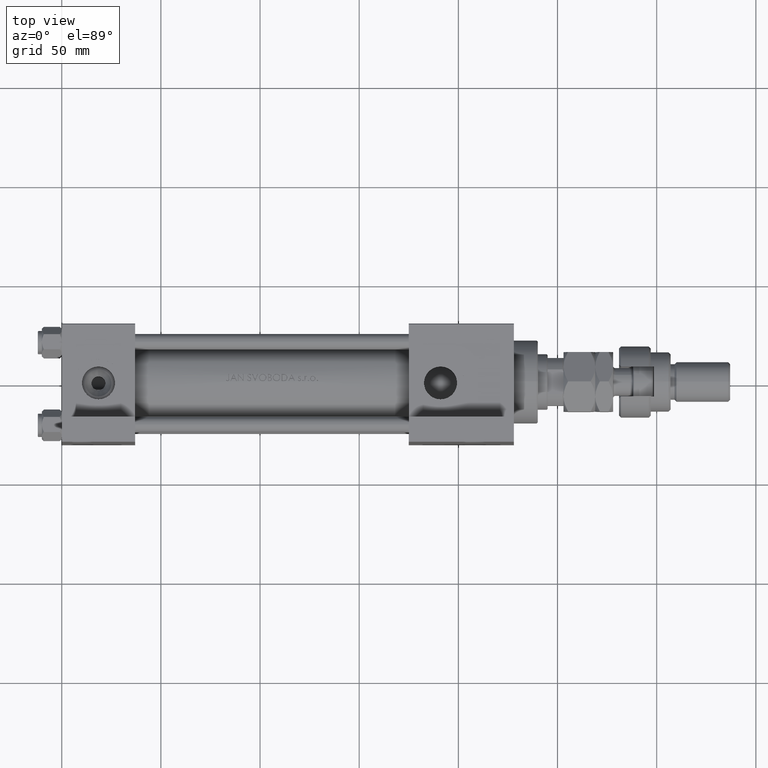
[diagram: clean part render]
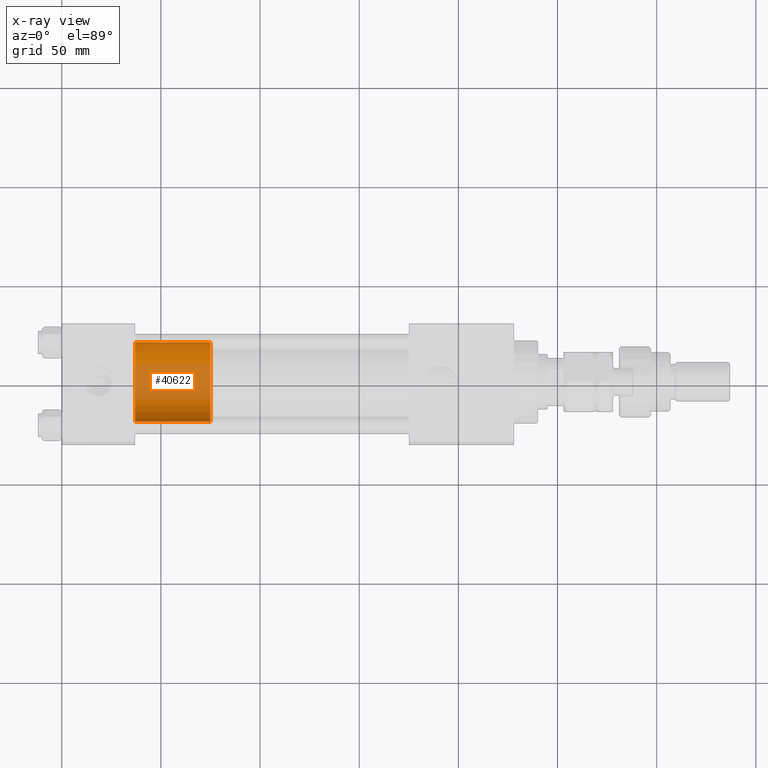
[diagram: x-ray — body ghosted, one internal face saturated and labeled with its STEP entity id]
A machine part, top view, then the same camera in x-ray: the body is ghosted and one INTERNAL B-rep face — a face not visible from any outside direction — is saturated and labeled: STEP entity #40622.
In plain terms, the highlighted cylindrical surface (partial cylindrical patch) has radius 20 mm, axis along (-1, 0, 0).
Its self-contained STEP definition (entity closure, byte-faithful):
#971 = EDGE_CURVE ( 'NONE', #23239, #45034, #5481, .T. ) ;
#1563 = DIRECTION ( 'NONE',  ( 0.000000000000000000, 0.000000000000000000, 1.000000000000000000 ) ) ;
#2635 = CARTESIAN_POINT ( 'NONE',  ( 0.000000000000000000, 0.000000000000000000, 38.00000000000000000 ) ) ;
#5481 = CIRCLE ( 'NONE', #34110, 20.00000000000000000 ) ;
#9569 = DIRECTION ( 'NONE',  ( -0.000000000000000000, -0.000000000000000000, -1.000000000000000000 ) ) ;
#9692 = CARTESIAN_POINT ( 'NONE',  ( 0.000000000000000000, 0.000000000000000000, 0.000000000000000000 ) ) ;
#10379 = VERTEX_POINT ( 'NONE', #26493 ) ;
#11996 = EDGE_CURVE ( 'NONE', #42879, #10379, #14216, .T. ) ;
#12259 = EDGE_LOOP ( 'NONE', ( #39052, #13752, #13368, #42989 ) ) ;
#13361 = AXIS2_PLACEMENT_3D ( 'NONE', #9692, #41887, #21830 ) ;
#13368 = ORIENTED_EDGE ( 'NONE', *, *, #11996, .T. ) ;
#13676 = CARTESIAN_POINT ( 'NONE',  ( 20.00000000000000000, 2.449293598294706513E-15, 38.00000000000000000 ) ) ;
#13752 = ORIENTED_EDGE ( 'NONE', *, *, #29108, .T. ) ;
#14216 = CIRCLE ( 'NONE', #13361, 20.00000000000000000 ) ;
#14990 = DIRECTION ( 'NONE',  ( 1.000000000000000000, 0.000000000000000000, 0.000000000000000000 ) ) ;
#16099 = VECTOR ( 'NONE', #40850, 1000.000000000000000 ) ;
#16336 = CARTESIAN_POINT ( 'NONE',  ( 20.00000000000000000, 2.449293598294706513E-15, 38.00000000000000000 ) ) ;
#19370 = DIRECTION ( 'NONE',  ( -0.000000000000000000, -0.000000000000000000, -1.000000000000000000 ) ) ;
#20806 = LINE ( 'NONE', #13676, #16099 ) ;
#21830 = DIRECTION ( 'NONE',  ( 1.000000000000000000, 0.000000000000000000, 0.000000000000000000 ) ) ;
#22641 = CARTESIAN_POINT ( 'NONE',  ( -20.00000000000000000, 0.000000000000000000, 38.00000000000000000 ) ) ;
#23239 = VERTEX_POINT ( 'NONE', #16336 ) ;
#23942 = VECTOR ( 'NONE', #19370, 1000.000000000000000 ) ;
#26493 = CARTESIAN_POINT ( 'NONE',  ( -20.00000000000000000, 0.000000000000000000, 0.000000000000000000 ) ) ;
#26904 = DIRECTION ( 'NONE',  ( -1.000000000000000000, 0.000000000000000000, 0.000000000000000000 ) ) ;
#28155 = AXIS2_PLACEMENT_3D ( 'NONE', #2635, #9569, #26904 ) ;
#29108 = EDGE_CURVE ( 'NONE', #23239, #42879, #20806, .T. ) ;
#34110 = AXIS2_PLACEMENT_3D ( 'NONE', #41665, #1563, #14990 ) ;
#38764 = CYLINDRICAL_SURFACE ( 'NONE', #28155, 20.00000000000000000 ) ;
#39052 = ORIENTED_EDGE ( 'NONE', *, *, #971, .F. ) ;
#40454 = EDGE_CURVE ( 'NONE', #45034, #10379, #51560, .T. ) ;
#40622 = ADVANCED_FACE ( 'NONE', ( #45463 ), #38764, .T. ) ;
#40850 = DIRECTION ( 'NONE',  ( -0.000000000000000000, -0.000000000000000000, -1.000000000000000000 ) ) ;
#41665 = CARTESIAN_POINT ( 'NONE',  ( 0.000000000000000000, 0.000000000000000000, 38.00000000000000000 ) ) ;
#41887 = DIRECTION ( 'NONE',  ( 0.000000000000000000, 0.000000000000000000, 1.000000000000000000 ) ) ;
#42861 = CARTESIAN_POINT ( 'NONE',  ( -20.00000000000000000, 0.000000000000000000, 38.00000000000000000 ) ) ;
#42879 = VERTEX_POINT ( 'NONE', #51101 ) ;
#42989 = ORIENTED_EDGE ( 'NONE', *, *, #40454, .F. ) ;
#45034 = VERTEX_POINT ( 'NONE', #22641 ) ;
#45463 = FACE_OUTER_BOUND ( 'NONE', #12259, .T. ) ;
#51101 = CARTESIAN_POINT ( 'NONE',  ( 20.00000000000000000, 2.449293598294706513E-15, 0.000000000000000000 ) ) ;
#51560 = LINE ( 'NONE', #42861, #23942 ) ;